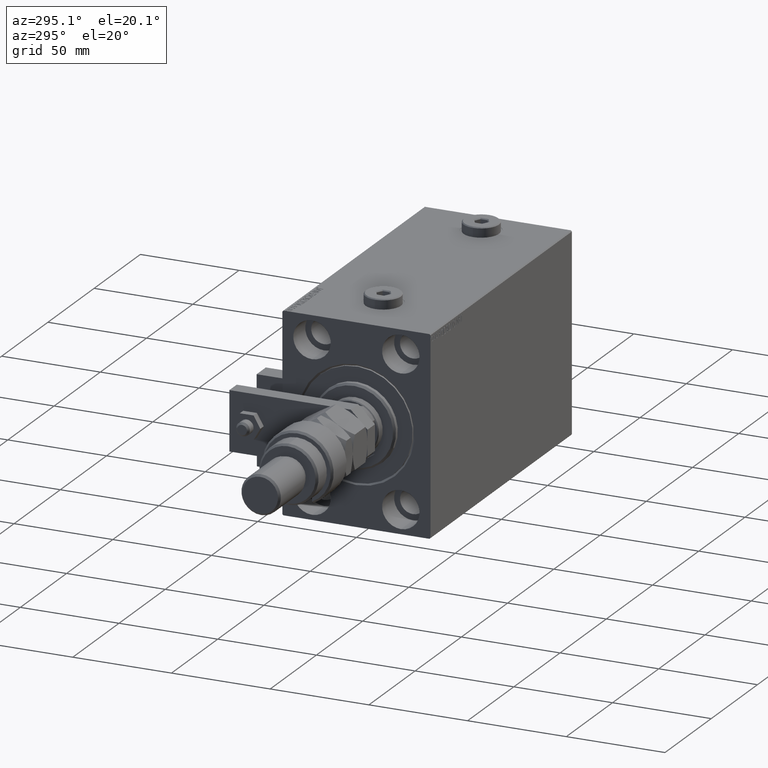
[diagram: clean part render]
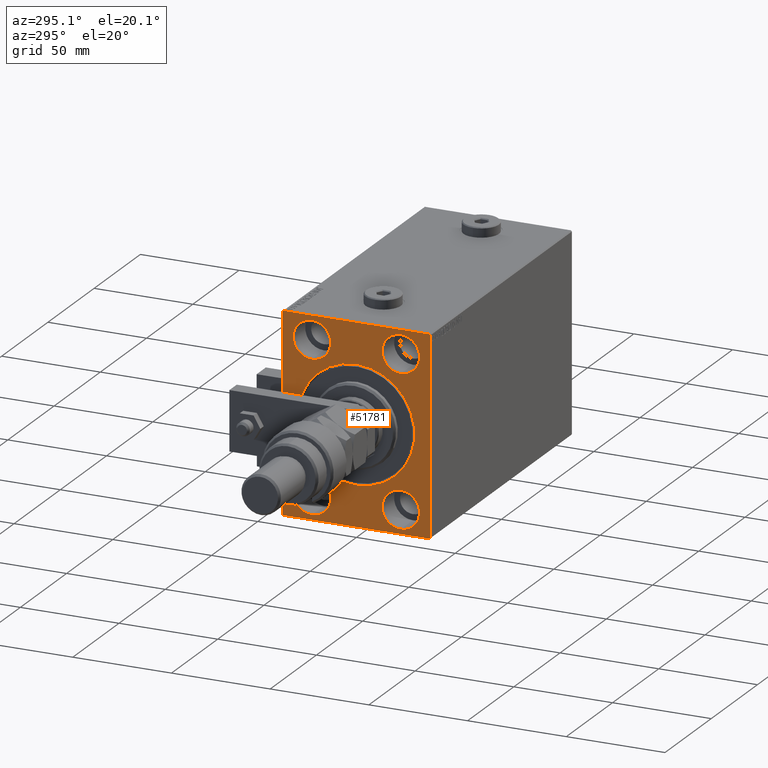
[diagram: same view with one face highlighted and labeled with its STEP entity id]
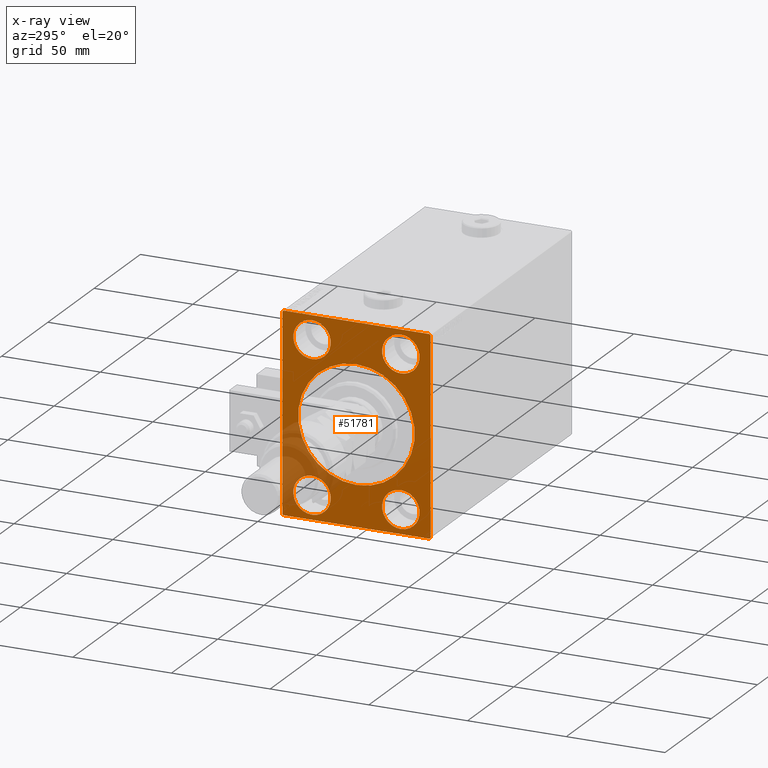
[diagram: x-ray of the same camera — body ghosted, the highlighted face saturated]
A machine part, auxiliary view. The second image highlights one B-rep face of the part: STEP entity #51781.
The next image is the same camera in x-ray: the body ghosted, the highlighted face saturated — about 14% of this face is hidden behind the body in this view.
In plain terms, the highlighted planar face has unit normal (1, 0, 0).
Its self-contained STEP definition (entity closure, byte-faithful):
#11 = CARTESIAN_POINT ( 'NONE',  ( 0.000000000000000000, 36.99999999999999289, 50.00000000000000711 ) ) ;
#55 = CIRCLE ( 'NONE', #8815, 9.500000000000001776 ) ;
#373 = EDGE_LOOP ( 'NONE', ( #42706, #12339 ) ) ;
#733 = VERTEX_POINT ( 'NONE', #11 ) ;
#880 = DIRECTION ( 'NONE',  ( -1.000000000000000000, 0.000000000000000000, 0.000000000000000000 ) ) ;
#1115 = AXIS2_PLACEMENT_3D ( 'NONE', #13795, #30084, #38874 ) ;
#1161 = DIRECTION ( 'NONE',  ( 0.000000000000000000, -0.7071067811865474617, -0.7071067811865474617 ) ) ;
#1185 = VERTEX_POINT ( 'NONE', #30428 ) ;
#1478 = CARTESIAN_POINT ( 'NONE',  ( 0.000000000000000000, 22.49999999999999645, -47.49999999999999289 ) ) ;
#2052 = VERTEX_POINT ( 'NONE', #35993 ) ;
#2349 = EDGE_CURVE ( 'NONE', #29612, #54200, #32312, .T. ) ;
#2438 = CARTESIAN_POINT ( 'NONE',  ( 0.000000000000000000, 0.000000000000000000, 29.50000000000002842 ) ) ;
#2448 = CIRCLE ( 'NONE', #23581, 9.500000000000001776 ) ;
#2506 = ORIENTED_EDGE ( 'NONE', *, *, #54104, .T. ) ;
#2519 = LINE ( 'NONE', #28144, #16124 ) ;
#2605 = VERTEX_POINT ( 'NONE', #40182 ) ;
#2772 = DIRECTION ( 'NONE',  ( -0.000000000000000000, 0.7071067811865425767, -0.7071067811865525687 ) ) ;
#3293 = AXIS2_PLACEMENT_3D ( 'NONE', #48787, #7164, #44103 ) ;
#3955 = EDGE_CURVE ( 'NONE', #2605, #43689, #2448, .T. ) ;
#4232 = CARTESIAN_POINT ( 'NONE',  ( 0.000000000000000000, 37.49999999999999289, 50.00000000000000711 ) ) ;
#4619 = EDGE_CURVE ( 'NONE', #43689, #2605, #48231, .T. ) ;
#5620 = VERTEX_POINT ( 'NONE', #5782 ) ;
#5782 = CARTESIAN_POINT ( 'NONE',  ( 0.000000000000000000, 37.00000000000000711, -50.00000000000000000 ) ) ;
#7133 = VECTOR ( 'NONE', #1161, 1000.000000000000114 ) ;
#7164 = DIRECTION ( 'NONE',  ( -1.000000000000000000, 0.000000000000000000, 0.000000000000000000 ) ) ;
#8100 = VECTOR ( 'NONE', #25207, 1000.000000000000000 ) ;
#8409 = CARTESIAN_POINT ( 'NONE',  ( 0.000000000000000000, -37.00000000000003553, -50.00000000000000711 ) ) ;
#8599 = EDGE_CURVE ( 'NONE', #47085, #39746, #37690, .T. ) ;
#8627 = EDGE_LOOP ( 'NONE', ( #15468, #18957 ) ) ;
#8815 = AXIS2_PLACEMENT_3D ( 'NONE', #23944, #49277, #27796 ) ;
#9423 = LINE ( 'NONE', #38902, #7133 ) ;
#9455 = CIRCLE ( 'NONE', #43873, 29.50000000000002842 ) ;
#9573 = DIRECTION ( 'NONE',  ( 0.000000000000000000, 0.000000000000000000, 1.000000000000000000 ) ) ;
#9684 = DIRECTION ( 'NONE',  ( 0.000000000000000000, 0.000000000000000000, 1.000000000000000000 ) ) ;
#10498 = CARTESIAN_POINT ( 'NONE',  ( 0.000000000000000000, 37.50000000000000711, -49.50000000000000000 ) ) ;
#11105 = ORIENTED_EDGE ( 'NONE', *, *, #8599, .F. ) ;
#11208 = CARTESIAN_POINT ( 'NONE',  ( 0.000000000000000000, -37.50000000000000711, 49.99999999999999289 ) ) ;
#11480 = DIRECTION ( 'NONE',  ( 0.000000000000000000, 0.000000000000000000, 1.000000000000000000 ) ) ;
#11640 = CARTESIAN_POINT ( 'NONE',  ( 0.000000000000000000, -37.00000000000003553, -50.00000000000000711 ) ) ;
#11678 = CARTESIAN_POINT ( 'NONE',  ( 0.000000000000000000, 0.000000000000000000, 0.000000000000000000 ) ) ;
#11832 = CARTESIAN_POINT ( 'NONE',  ( 0.000000000000000000, -37.50000000000000711, 49.49999999999999289 ) ) ;
#12170 = AXIS2_PLACEMENT_3D ( 'NONE', #34380, #47331, #9573 ) ;
#12295 = EDGE_LOOP ( 'NONE', ( #11105, #19152 ) ) ;
#12339 = ORIENTED_EDGE ( 'NONE', *, *, #3955, .F. ) ;
#12506 = EDGE_CURVE ( 'NONE', #20718, #48613, #55, .T. ) ;
#13691 = VERTEX_POINT ( 'NONE', #10498 ) ;
#13795 = CARTESIAN_POINT ( 'NONE',  ( 0.000000000000000000, -22.50000000000000711, -37.99999999999999289 ) ) ;
#14177 = CARTESIAN_POINT ( 'NONE',  ( 0.000000000000000000, -22.49999999999999645, 37.99999999999999289 ) ) ;
#14324 = CIRCLE ( 'NONE', #1115, 9.500000000000001776 ) ;
#14391 = CIRCLE ( 'NONE', #42550, 9.500000000000001776 ) ;
#14430 = VERTEX_POINT ( 'NONE', #39999 ) ;
#14747 = FACE_BOUND ( 'NONE', #373, .T. ) ;
#14995 = DIRECTION ( 'NONE',  ( 1.000000000000000000, 0.000000000000000000, 0.000000000000000000 ) ) ;
#15468 = ORIENTED_EDGE ( 'NONE', *, *, #24483, .F. ) ;
#15566 = CARTESIAN_POINT ( 'NONE',  ( 0.000000000000000000, 0.000000000000000000, 0.000000000000000000 ) ) ;
#15673 = CIRCLE ( 'NONE', #23602, 29.50000000000002842 ) ;
#16124 = VECTOR ( 'NONE', #23467, 1000.000000000000000 ) ;
#16730 = LINE ( 'NONE', #11208, #42118 ) ;
#17035 = CARTESIAN_POINT ( 'NONE',  ( 0.000000000000000000, 22.50000000000000355, 28.49999999999998934 ) ) ;
#17721 = LINE ( 'NONE', #4232, #8100 ) ;
#18213 = VECTOR ( 'NONE', #36991, 1000.000000000000114 ) ;
#18559 = VERTEX_POINT ( 'NONE', #2438 ) ;
#18901 = FACE_BOUND ( 'NONE', #8627, .T. ) ;
#18957 = ORIENTED_EDGE ( 'NONE', *, *, #12506, .F. ) ;
#19134 = ORIENTED_EDGE ( 'NONE', *, *, #40033, .F. ) ;
#19152 = ORIENTED_EDGE ( 'NONE', *, *, #19201, .F. ) ;
#19172 = FACE_BOUND ( 'NONE', #26553, .T. ) ;
#19201 = EDGE_CURVE ( 'NONE', #39746, #47085, #14391, .T. ) ;
#19229 = CARTESIAN_POINT ( 'NONE',  ( 0.000000000000000000, 0.000000000000000000, 0.000000000000000000 ) ) ;
#19999 = DIRECTION ( 'NONE',  ( -1.000000000000000000, 0.000000000000000000, 0.000000000000000000 ) ) ;
#20568 = LINE ( 'NONE', #37348, #53933 ) ;
#20718 = VERTEX_POINT ( 'NONE', #17035 ) ;
#20933 = ORIENTED_EDGE ( 'NONE', *, *, #2349, .T. ) ;
#20975 = VECTOR ( 'NONE', #2772, 999.9999999999998863 ) ;
#21061 = EDGE_CURVE ( 'NONE', #53806, #50810, #42836, .T. ) ;
#21788 = AXIS2_PLACEMENT_3D ( 'NONE', #15566, #23047, #35675 ) ;
#22547 = CARTESIAN_POINT ( 'NONE',  ( 0.000000000000000000, -37.50000000000000711, -49.50000000000003553 ) ) ;
#23038 = CARTESIAN_POINT ( 'NONE',  ( 0.000000000000000000, -37.00000000000000711, 49.99999999999999289 ) ) ;
#23047 = DIRECTION ( 'NONE',  ( 1.000000000000000000, 0.000000000000000000, 0.000000000000000000 ) ) ;
#23359 = ORIENTED_EDGE ( 'NONE', *, *, #35298, .T. ) ;
#23467 = DIRECTION ( 'NONE',  ( 0.000000000000000000, -1.387778780781445676E-16, 1.000000000000000000 ) ) ;
#23547 = DIRECTION ( 'NONE',  ( -1.000000000000000000, 0.000000000000000000, 0.000000000000000000 ) ) ;
#23581 = AXIS2_PLACEMENT_3D ( 'NONE', #14177, #23547, #35101 ) ;
#23602 = AXIS2_PLACEMENT_3D ( 'NONE', #19229, #27227, #23639 ) ;
#23639 = DIRECTION ( 'NONE',  ( 0.000000000000000000, 0.000000000000000000, -1.000000000000000000 ) ) ;
#23944 = CARTESIAN_POINT ( 'NONE',  ( 0.000000000000000000, 22.50000000000000355, 37.99999999999999289 ) ) ;
#24293 = ORIENTED_EDGE ( 'NONE', *, *, #21061, .T. ) ;
#24483 = EDGE_CURVE ( 'NONE', #48613, #20718, #47309, .T. ) ;
#24596 = AXIS2_PLACEMENT_3D ( 'NONE', #30900, #880, #9684 ) ;
#25013 = DIRECTION ( 'NONE',  ( -1.000000000000000000, 0.000000000000000000, 0.000000000000000000 ) ) ;
#25207 = DIRECTION ( 'NONE',  ( 0.000000000000000000, -1.000000000000000000, -1.850371707708594316E-16 ) ) ;
#25532 = EDGE_CURVE ( 'NONE', #733, #1185, #32247, .T. ) ;
#26553 = EDGE_LOOP ( 'NONE', ( #54192, #2506 ) ) ;
#27227 = DIRECTION ( 'NONE',  ( 1.000000000000000000, 0.000000000000000000, 0.000000000000000000 ) ) ;
#27596 = CARTESIAN_POINT ( 'NONE',  ( 0.000000000000000000, 36.99999999999999289, 50.00000000000000711 ) ) ;
#27611 = EDGE_CURVE ( 'NONE', #18559, #2052, #9455, .T. ) ;
#27796 = DIRECTION ( 'NONE',  ( 0.000000000000000000, 0.000000000000000000, 1.000000000000000000 ) ) ;
#27985 = PLANE ( 'NONE',  #21788 ) ;
#28144 = CARTESIAN_POINT ( 'NONE',  ( 0.000000000000000000, 37.50000000000000711, -50.00000000000000000 ) ) ;
#29612 = VERTEX_POINT ( 'NONE', #8409 ) ;
#30084 = DIRECTION ( 'NONE',  ( -1.000000000000000000, 0.000000000000000000, 0.000000000000000000 ) ) ;
#30428 = CARTESIAN_POINT ( 'NONE',  ( 0.000000000000000000, 37.49999999999999289, 49.50000000000000000 ) ) ;
#30900 = CARTESIAN_POINT ( 'NONE',  ( 0.000000000000000000, -22.50000000000000711, -37.99999999999999289 ) ) ;
#30902 = EDGE_CURVE ( 'NONE', #41223, #14430, #47463, .T. ) ;
#31400 = CARTESIAN_POINT ( 'NONE',  ( 0.000000000000000000, -22.50000000000000711, -28.49999999999998934 ) ) ;
#31404 = ORIENTED_EDGE ( 'NONE', *, *, #30902, .F. ) ;
#31818 = DIRECTION ( 'NONE',  ( 0.000000000000000000, 0.000000000000000000, -1.000000000000000000 ) ) ;
#32247 = LINE ( 'NONE', #27596, #20975 ) ;
#32312 = LINE ( 'NONE', #11640, #18213 ) ;
#32679 = DIRECTION ( 'NONE',  ( 0.000000000000000000, 0.000000000000000000, 1.000000000000000000 ) ) ;
#33007 = ORIENTED_EDGE ( 'NONE', *, *, #54232, .F. ) ;
#33363 = ORIENTED_EDGE ( 'NONE', *, *, #37261, .F. ) ;
#33763 = CARTESIAN_POINT ( 'NONE',  ( 0.000000000000000000, 22.49999999999999645, -37.99999999999999289 ) ) ;
#34380 = CARTESIAN_POINT ( 'NONE',  ( 0.000000000000000000, -22.49999999999999645, 37.99999999999999289 ) ) ;
#35101 = DIRECTION ( 'NONE',  ( 0.000000000000000000, 0.000000000000000000, 1.000000000000000000 ) ) ;
#35298 = EDGE_CURVE ( 'NONE', #13691, #5620, #9423, .T. ) ;
#35675 = DIRECTION ( 'NONE',  ( 0.000000000000000000, 0.000000000000000000, -1.000000000000000000 ) ) ;
#35903 = ORIENTED_EDGE ( 'NONE', *, *, #25532, .T. ) ;
#35993 = CARTESIAN_POINT ( 'NONE',  ( 0.000000000000000000, 3.612708057484695548E-15, -29.50000000000002842 ) ) ;
#36000 = CARTESIAN_POINT ( 'NONE',  ( 0.000000000000000000, 22.49999999999999645, -28.49999999999998934 ) ) ;
#36232 = FACE_BOUND ( 'NONE', #40881, .T. ) ;
#36991 = DIRECTION ( 'NONE',  ( -0.000000000000000000, -0.7071067811865474617, 0.7071067811865474617 ) ) ;
#37261 = EDGE_CURVE ( 'NONE', #733, #50810, #17721, .T. ) ;
#37348 = CARTESIAN_POINT ( 'NONE',  ( 0.000000000000000000, -37.50000000000000711, -50.00000000000000711 ) ) ;
#37690 = CIRCLE ( 'NONE', #51776, 9.500000000000001776 ) ;
#37891 = DIRECTION ( 'NONE',  ( 0.000000000000000000, 1.000000000000000000, 9.251858538542970348E-17 ) ) ;
#38874 = DIRECTION ( 'NONE',  ( 0.000000000000000000, 0.000000000000000000, 1.000000000000000000 ) ) ;
#38883 = EDGE_CURVE ( 'NONE', #29612, #5620, #20568, .T. ) ;
#38902 = CARTESIAN_POINT ( 'NONE',  ( 0.000000000000000000, 37.50000000000000711, -49.50000000000000000 ) ) ;
#39746 = VERTEX_POINT ( 'NONE', #1478 ) ;
#39999 = CARTESIAN_POINT ( 'NONE',  ( 0.000000000000000000, -22.50000000000000711, -47.49999999999999289 ) ) ;
#40033 = EDGE_CURVE ( 'NONE', #13691, #1185, #2519, .T. ) ;
#40182 = CARTESIAN_POINT ( 'NONE',  ( 0.000000000000000000, -22.49999999999999645, 28.49999999999998934 ) ) ;
#40836 = EDGE_LOOP ( 'NONE', ( #33007, #24293, #33363, #35903, #19134, #23359, #41431, #20933 ) ) ;
#40881 = EDGE_LOOP ( 'NONE', ( #31404, #47230 ) ) ;
#41223 = VERTEX_POINT ( 'NONE', #31400 ) ;
#41431 = ORIENTED_EDGE ( 'NONE', *, *, #38883, .F. ) ;
#42118 = VECTOR ( 'NONE', #53945, 1000.000000000000000 ) ;
#42313 = CARTESIAN_POINT ( 'NONE',  ( 0.000000000000000000, -37.50000000000000711, 49.49999999999999289 ) ) ;
#42480 = VECTOR ( 'NONE', #47252, 1000.000000000000114 ) ;
#42550 = AXIS2_PLACEMENT_3D ( 'NONE', #33763, #19999, #32679 ) ;
#42673 = EDGE_CURVE ( 'NONE', #14430, #41223, #14324, .T. ) ;
#42706 = ORIENTED_EDGE ( 'NONE', *, *, #4619, .F. ) ;
#42836 = LINE ( 'NONE', #42313, #42480 ) ;
#43689 = VERTEX_POINT ( 'NONE', #49475 ) ;
#43873 = AXIS2_PLACEMENT_3D ( 'NONE', #11678, #14995, #31818 ) ;
#44103 = DIRECTION ( 'NONE',  ( 0.000000000000000000, 0.000000000000000000, 1.000000000000000000 ) ) ;
#47085 = VERTEX_POINT ( 'NONE', #36000 ) ;
#47230 = ORIENTED_EDGE ( 'NONE', *, *, #42673, .F. ) ;
#47252 = DIRECTION ( 'NONE',  ( -0.000000000000000000, 0.7071067811865474617, 0.7071067811865474617 ) ) ;
#47309 = CIRCLE ( 'NONE', #3293, 9.500000000000001776 ) ;
#47331 = DIRECTION ( 'NONE',  ( -1.000000000000000000, 0.000000000000000000, 0.000000000000000000 ) ) ;
#47463 = CIRCLE ( 'NONE', #24596, 9.500000000000001776 ) ;
#48231 = CIRCLE ( 'NONE', #12170, 9.500000000000001776 ) ;
#48613 = VERTEX_POINT ( 'NONE', #53058 ) ;
#48787 = CARTESIAN_POINT ( 'NONE',  ( 0.000000000000000000, 22.50000000000000355, 37.99999999999999289 ) ) ;
#49277 = DIRECTION ( 'NONE',  ( -1.000000000000000000, 0.000000000000000000, 0.000000000000000000 ) ) ;
#49475 = CARTESIAN_POINT ( 'NONE',  ( 0.000000000000000000, -22.49999999999999645, 47.49999999999999289 ) ) ;
#50810 = VERTEX_POINT ( 'NONE', #23038 ) ;
#51776 = AXIS2_PLACEMENT_3D ( 'NONE', #54203, #25013, #11480 ) ;
#51781 = ADVANCED_FACE ( 'NONE', ( #19172, #52249, #14747, #18901, #36232, #52795 ), #27985, .F. ) ;
#52249 = FACE_BOUND ( 'NONE', #12295, .T. ) ;
#52795 = FACE_OUTER_BOUND ( 'NONE', #40836, .T. ) ;
#53058 = CARTESIAN_POINT ( 'NONE',  ( 0.000000000000000000, 22.50000000000000355, 47.49999999999999289 ) ) ;
#53806 = VERTEX_POINT ( 'NONE', #11832 ) ;
#53933 = VECTOR ( 'NONE', #37891, 1000.000000000000000 ) ;
#53945 = DIRECTION ( 'NONE',  ( 0.000000000000000000, 0.000000000000000000, -1.000000000000000000 ) ) ;
#54104 = EDGE_CURVE ( 'NONE', #2052, #18559, #15673, .T. ) ;
#54192 = ORIENTED_EDGE ( 'NONE', *, *, #27611, .T. ) ;
#54200 = VERTEX_POINT ( 'NONE', #22547 ) ;
#54203 = CARTESIAN_POINT ( 'NONE',  ( 0.000000000000000000, 22.49999999999999645, -37.99999999999999289 ) ) ;
#54232 = EDGE_CURVE ( 'NONE', #53806, #54200, #16730, .T. ) ;